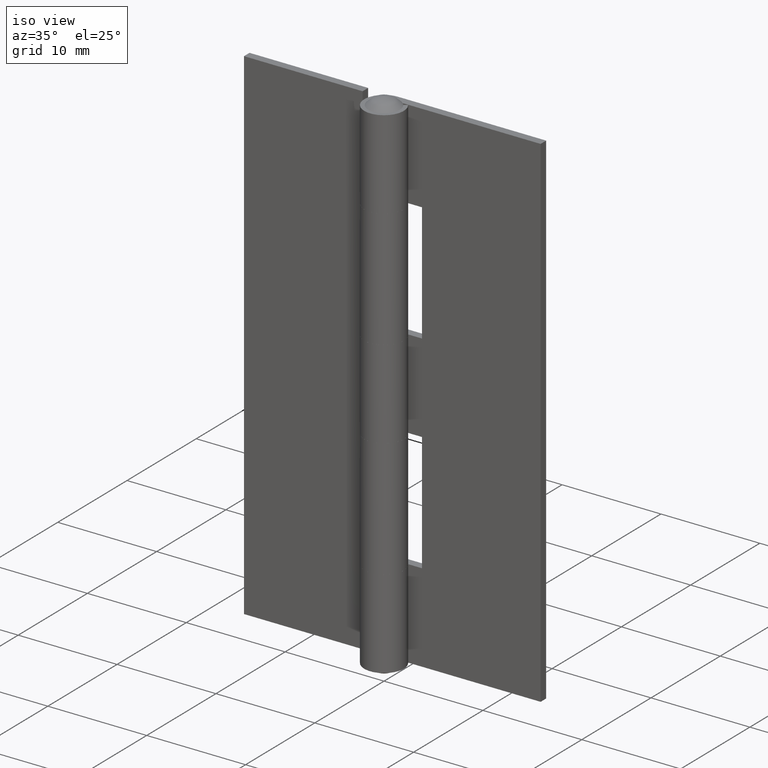
[diagram: clean part render]
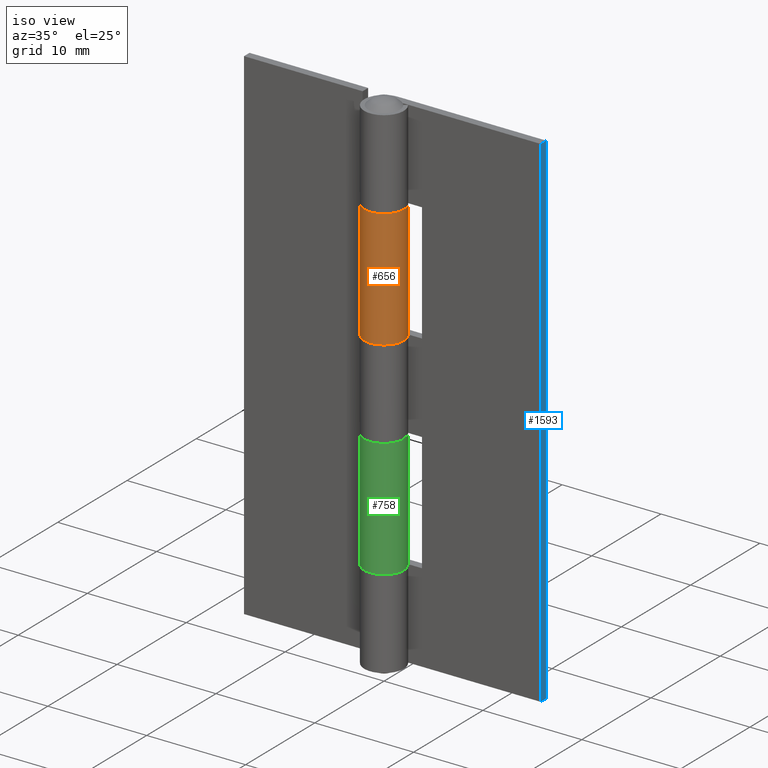
[diagram: same view with three faces highlighted in distinct colors, each labeled with its STEP entity id]
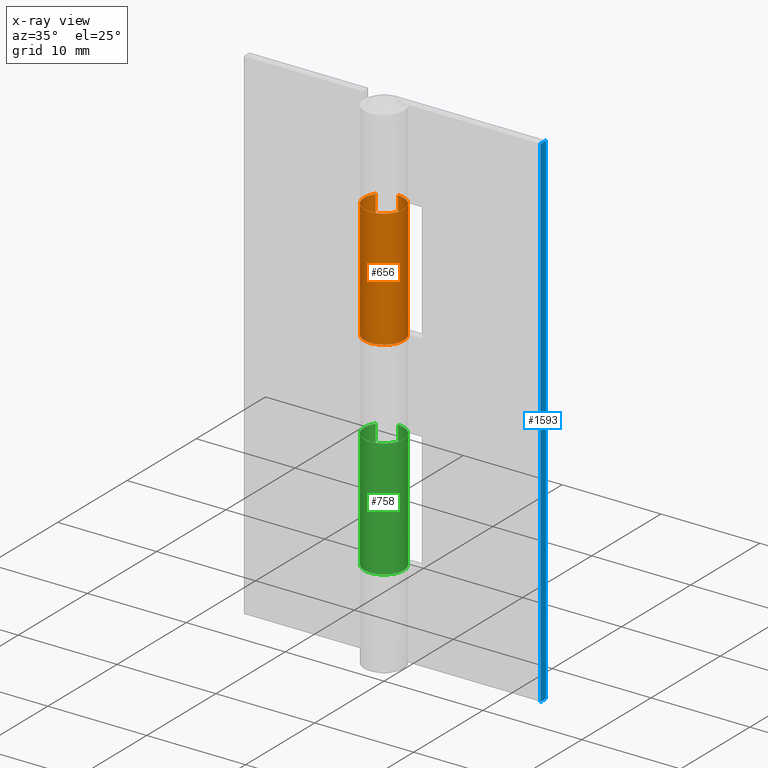
[diagram: x-ray of the same camera — body ghosted, the three highlighted faces saturated]
A machine part, iso view with three faces highlighted in distinct colors.
The next image is the same camera in x-ray (body ghosted, the three faces saturated) — at least one of them is partly hidden behind the body in this view.
Their STEP definitions:

[orange] entity #656 — the highlighted face is a freeform B-spline surface patch.
#171=CARTESIAN_POINT('',(1.431147E-014,2.0,30.0));
#172=VERTEX_POINT('',#171);
#173=CARTESIAN_POINT('',(-1.636306817195345,1.150000000000000,30.0));
#174=VERTEX_POINT('',#173);
#175=CARTESIAN_POINT('',(1.431147E-014,2.0,30.0));
#176=CARTESIAN_POINT('',(0.166407415358827,2.000050079355388,30.000000000000021));
#177=CARTESIAN_POINT('',(0.429851216556890,1.966913001583716,29.999999999999972));
#178=CARTESIAN_POINT('',(0.785910731050889,1.847956880970741,30.000000000000050));
#179=CARTESIAN_POINT('',(1.131834049701320,1.668626990041065,29.999999999999961));
#180=CARTESIAN_POINT('',(1.496757528747735,1.363287093008922,30.000000000000028));
#181=CARTESIAN_POINT('',(1.798553053980026,0.925414399863152,29.999999999999979));
#182=CARTESIAN_POINT('',(1.982173891424066,0.412231130809324,30.000000000000021));
#183=CARTESIAN_POINT('',(2.016998049013773,-0.062981384088155,30.000000000000060));
#184=CARTESIAN_POINT('',(1.952190252278577,-0.475393508097734,29.999999999999780));
#185=CARTESIAN_POINT('',(1.833291464195715,-0.831805031842955,29.999999999999961));
#186=CARTESIAN_POINT('',(1.646138040619473,-1.158921798141773,30.000000000000188));
#187=CARTESIAN_POINT('',(1.389991396884875,-1.452533978939808,29.999999999999911));
#188=CARTESIAN_POINT('',(1.075105907072353,-1.705487834973646,29.999999999999730));
#189=CARTESIAN_POINT('',(0.636478216757960,-1.921942713740374,29.999999999999829));
#190=CARTESIAN_POINT('',(0.085742863000897,-2.026682686162110,30.000000000000540));
#191=CARTESIAN_POINT('',(-0.443979542244820,-1.971719284751333,29.999999999999069));
#192=CARTESIAN_POINT('',(-0.862633929069587,-1.817424476725190,30.000000000001251));
#193=CARTESIAN_POINT('',(-1.220664866619967,-1.602758880038607,29.999999999998479));
#194=CARTESIAN_POINT('',(-1.548472519762556,-1.298563796943568,30.000000000000540));
#195=CARTESIAN_POINT('',(-1.806073852829822,-0.899293160364123,29.999999999999879));
#196=CARTESIAN_POINT('',(-1.947209931733886,-0.505547267733501,30.0));
#197=CARTESIAN_POINT('',(-2.003777218698928,-0.148191587166170,29.999999999999911));
#198=CARTESIAN_POINT('',(-2.000275504016949,0.227518922927573,30.000000000000490));
#199=CARTESIAN_POINT('',(-1.905618359419077,0.678304117208774,29.999999999998838));
#200=CARTESIAN_POINT('',(-1.748007598319449,0.991210971408382,30.000000000000320));
#201=CARTESIAN_POINT('',(-1.636306817195345,1.150000000000000,30.0));
#202=B_SPLINE_CURVE_WITH_KNOTS('',3,(#175,#176,#177,#178,#179,#180,#181,#182,#183,#184,#185,#186,#187,#188,#189,#190,#191,#192,#193,#194,#195,#196,#197,#198,#199,#200,#201),.UNSPECIFIED.,.F.,.U.,(4,1,1,1,1,1,1,1,1,1,1,1,1,1,1,1,1,1,1,1,1,1,1,1,4),(0.000000201474188,0.499212689338291,0.790429006822603,1.123256379161166,1.664097032060798,2.204944293009575,2.704141026150888,3.286565640552339,3.619397250422500,3.952214970633659,4.409852887397958,4.742679100298130,5.117104416916960,5.616279948030615,6.198724721853265,6.781170240478960,7.197206596826588,7.530033253511289,8.029227655604821,8.528441217914102,8.944476352518075,9.277303727273678,9.610128428154880,10.067767841609429,10.650178224110160),.UNSPECIFIED.);
#203=EDGE_CURVE('',#172,#174,#202,.T.);
#386=CARTESIAN_POINT('',(-1.636306817195345,1.150000000000000,42.0));
#387=VERTEX_POINT('',#386);
#388=CARTESIAN_POINT('',(1.421085E-014,2.0,42.0));
#389=VERTEX_POINT('',#388);
#390=CARTESIAN_POINT('',(-1.636306817195345,1.150000000000000,42.0));
#391=CARTESIAN_POINT('',(-1.748018682310231,0.991210865877407,42.000000000000263));
#392=CARTESIAN_POINT('',(-1.880371840426603,0.728366835532338,41.999999999999609));
#393=CARTESIAN_POINT('',(-1.982996454811505,0.324062319857837,42.000000000000277));
#394=CARTESIAN_POINT('',(-2.008148876336563,0.018679148481105,41.999999999999858));
#395=CARTESIAN_POINT('',(-1.983547463671409,-0.313881204574845,42.000000000000007));
#396=CARTESIAN_POINT('',(-1.891603044002020,-0.707217001335716,42.000000000000007));
#397=CARTESIAN_POINT('',(-1.707904580457728,-1.069735533666204,42.0));
#398=CARTESIAN_POINT('',(-1.464108883074861,-1.372913327825451,42.0));
#399=CARTESIAN_POINT('',(-1.239751626289915,-1.581173363288416,41.999999999999993));
#400=CARTESIAN_POINT('',(-0.914225857587519,-1.795300835210603,42.000000000000007));
#401=CARTESIAN_POINT('',(-0.549926475284961,-1.938164267052962,42.000000000000021));
#402=CARTESIAN_POINT('',(-0.096987336361621,-2.013930339422328,42.000000000000007));
#403=CARTESIAN_POINT('',(0.350202936965233,-1.990364516745622,42.000000000000028));
#404=CARTESIAN_POINT('',(0.829911960461513,-1.840746750717589,41.999999999999972));
#405=CARTESIAN_POINT('',(1.225110946519733,-1.603041699137129,42.000000000000043));
#406=CARTESIAN_POINT('',(1.525280143150839,-1.311763673424854,41.999999999999922));
#407=CARTESIAN_POINT('',(1.733508576525659,-1.015886066766081,41.999999999999993));
#408=CARTESIAN_POINT('',(1.901932031299471,-0.664519599077613,42.000000000000590));
#409=CARTESIAN_POINT('',(2.001121178425797,-0.257157191773396,41.999999999998487));
#410=CARTESIAN_POINT('',(2.005890777932029,0.216859500142895,42.000000000002139));
#411=CARTESIAN_POINT('',(1.902807663356550,0.680702721343006,41.999999999998657));
#412=CARTESIAN_POINT('',(1.700892736017760,1.079726855818193,42.000000000000483));
#413=CARTESIAN_POINT('',(1.422157853996408,1.427007873524320,41.999999999999773));
#414=CARTESIAN_POINT('',(1.065441576196221,1.719351499745933,42.000000000000647));
#415=CARTESIAN_POINT('',(0.568504551835757,1.945048736086631,41.999999999997527));
#416=CARTESIAN_POINT('',(0.194143221032307,2.000085496742359,42.000000000005940));
#417=CARTESIAN_POINT('',(1.421085E-014,2.0,42.0));
#418=B_SPLINE_CURVE_WITH_KNOTS('',3,(#390,#391,#392,#393,#394,#395,#396,#397,#398,#399,#400,#401,#402,#403,#404,#405,#406,#407,#408,#409,#410,#411,#412,#413,#414,#415,#416,#417),.UNSPECIFIED.,.F.,.U.,(4,1,1,1,1,1,1,1,1,1,1,1,1,1,1,1,1,1,1,1,1,1,1,1,1,4),(0.000000201473163,0.582416088580835,0.873635155170991,1.248067233240366,1.497682879291890,1.872116587358658,2.454557791254880,2.704141026150337,3.036944900931299,3.369773954617563,3.869009265802554,4.201835316415449,4.742679100297766,5.200304102772907,5.699484902424469,6.115517430285908,6.448347043526924,6.781170240478712,7.280413625229476,7.696444078620313,8.195620997142635,8.694854542301505,9.027683879653475,9.526921123900054,10.067767841609401,10.650178224110171),.UNSPECIFIED.);
#419=EDGE_CURVE('',#387,#389,#418,.T.);
#614=CARTESIAN_POINT('',(-1.636306817195345,1.150000000000000,42.0));
#615=CARTESIAN_POINT('',(-1.636306817195345,1.150000000000000,30.0));
#616=QUASI_UNIFORM_CURVE('',1,(#614,#615),.UNSPECIFIED.,.F.,.U.);
#617=EDGE_CURVE('',#387,#174,#616,.T.);
#624=CARTESIAN_POINT('',(-1.586706680582456,1.217522858017441,42.299999999999997));
#625=CARTESIAN_POINT('',(-1.586706680582456,1.217522858017441,29.692499999999999));
#626=CARTESIAN_POINT('',(-3.145064874705680,-0.813369080538948,42.300000000000004));
#627=CARTESIAN_POINT('',(-3.145064874705680,-0.813369080538948,29.692499999999999));
#628=CARTESIAN_POINT('',(-0.797498137850478,-1.834120148770247,42.299999999999997));
#629=CARTESIAN_POINT('',(-0.797498137850478,-1.834120148770247,29.692499999999999));
#630=CARTESIAN_POINT('',(1.550068599004725,-2.854871217001547,42.300000000000004));
#631=CARTESIAN_POINT('',(1.550068599004725,-2.854871217001547,29.692499999999999));
#632=CARTESIAN_POINT('',(1.972571203074476,-0.330095211721356,42.299999999999997));
#633=CARTESIAN_POINT('',(1.972571203074476,-0.330095211721356,29.692499999999999));
#634=CARTESIAN_POINT('',(2.395073807144229,2.194680793558835,42.300000000000004));
#635=CARTESIAN_POINT('',(2.395073807144229,2.194680793558835,29.692499999999999));
#636=CARTESIAN_POINT('',(-0.156918191455675,1.993834667466255,42.299999999999997));
#637=CARTESIAN_POINT('',(-0.156918191455675,1.993834667466255,29.692499999999999));
#645=(BOUNDED_SURFACE()B_SPLINE_SURFACE(1,2,((#624,#626,#628,#630,#632,#634,#636),(#625,#627,#629,#631,#633,#635,#637)),.UNSPECIFIED.,.F.,.F.,.U.)B_SPLINE_SURFACE_WITH_KNOTS((2,2),(3,2,2,3),(0.0,12.607500000000011),(0.0,3.901860708526890,7.803721417053780,11.705582125580669),.UNSPECIFIED.)GEOMETRIC_REPRESENTATION_ITEM()RATIONAL_B_SPLINE_SURFACE(((1.0,0.615661475325658,1.0,0.615661475325658,1.0,0.615661475325658,1.0),(1.0,0.615661475325658,1.0,0.615661475325658,1.0,0.615661475325658,1.0)))REPRESENTATION_ITEM('')SURFACE());
#646=ORIENTED_EDGE('',*,*,#203,.F.);
#647=CARTESIAN_POINT('',(1.421085E-014,2.0,42.0));
#648=CARTESIAN_POINT('',(1.431147E-014,2.0,30.0));
#649=QUASI_UNIFORM_CURVE('',1,(#647,#648),.UNSPECIFIED.,.F.,.U.);
#650=EDGE_CURVE('',#389,#172,#649,.T.);
#651=ORIENTED_EDGE('',*,*,#650,.F.);
#652=ORIENTED_EDGE('',*,*,#419,.F.);
#653=ORIENTED_EDGE('',*,*,#617,.T.);
#654=EDGE_LOOP('',(#646,#651,#652,#653));
#655=FACE_OUTER_BOUND('',#654,.T.);
#656=ADVANCED_FACE('',(#655),#645,.T.);

[blue] entity #1593 — the highlighted face is a freeform B-spline surface patch.
#1135=CARTESIAN_POINT('',(15.0,1.200001000000014,0.0));
#1136=VERTEX_POINT('',#1135);
#1142=CARTESIAN_POINT('',(15.0,1.200001000000014,51.0));
#1143=VERTEX_POINT('',#1142);
#1144=CARTESIAN_POINT('',(15.0,1.200001000000014,51.0));
#1145=CARTESIAN_POINT('',(15.0,1.200001000000014,0.0));
#1146=QUASI_UNIFORM_CURVE('',1,(#1144,#1145),.UNSPECIFIED.,.F.,.U.);
#1147=EDGE_CURVE('',#1143,#1136,#1146,.T.);
#1495=CARTESIAN_POINT('',(15.0,2.0,0.0));
#1496=VERTEX_POINT('',#1495);
#1502=CARTESIAN_POINT('',(15.0,2.0,0.0));
#1503=CARTESIAN_POINT('',(15.0,1.200001000000014,0.0));
#1504=QUASI_UNIFORM_CURVE('',1,(#1502,#1503),.UNSPECIFIED.,.F.,.U.);
#1505=EDGE_CURVE('',#1496,#1136,#1504,.T.);
#1563=CARTESIAN_POINT('',(15.0,2.0,51.0));
#1564=VERTEX_POINT('',#1563);
#1565=CARTESIAN_POINT('',(15.0,2.0,51.0));
#1566=CARTESIAN_POINT('',(15.0,1.200001000000014,51.0));
#1567=QUASI_UNIFORM_CURVE('',1,(#1565,#1566),.UNSPECIFIED.,.F.,.U.);
#1568=EDGE_CURVE('',#1564,#1143,#1567,.T.);
#1578=CARTESIAN_POINT('',(15.0,1.160041051500568,53.547449901152113));
#1579=CARTESIAN_POINT('',(15.0,1.160041051500568,-2.547451269078700));
#1580=CARTESIAN_POINT('',(15.0,2.039959969957091,53.547449901152113));
#1581=CARTESIAN_POINT('',(15.0,2.039959969957091,-2.547451269078700));
#1582=B_SPLINE_SURFACE_WITH_KNOTS('',1,1,((#1578,#1580),(#1579,#1581)),.UNSPECIFIED.,.F.,.F.,.U.,(2,2),(2,2),(0.0,56.094901170230813),(0.041708334948495,0.958291687403247),.UNSPECIFIED.);
#1583=ORIENTED_EDGE('',*,*,#1505,.F.);
#1584=CARTESIAN_POINT('',(15.0,2.0,51.0));
#1585=CARTESIAN_POINT('',(15.0,2.0,0.0));
#1586=QUASI_UNIFORM_CURVE('',1,(#1584,#1585),.UNSPECIFIED.,.F.,.U.);
#1587=EDGE_CURVE('',#1564,#1496,#1586,.T.);
#1588=ORIENTED_EDGE('',*,*,#1587,.F.);
#1589=ORIENTED_EDGE('',*,*,#1568,.T.);
#1590=ORIENTED_EDGE('',*,*,#1147,.T.);
#1591=EDGE_LOOP('',(#1583,#1588,#1589,#1590));
#1592=FACE_OUTER_BOUND('',#1591,.T.);
#1593=ADVANCED_FACE('',(#1592),#1582,.T.);

[green] entity #758 — the highlighted face is a freeform B-spline surface patch.
#46=CARTESIAN_POINT('',(1.387779E-014,2.0,8.999999999999890));
#47=VERTEX_POINT('',#46);
#48=CARTESIAN_POINT('',(-1.636306817195345,1.150000000000000,8.999999999999901));
#49=VERTEX_POINT('',#48);
#50=CARTESIAN_POINT('',(1.387779E-014,2.0,8.999999999999890));
#51=CARTESIAN_POINT('',(0.235772724854465,2.000195115958390,8.999999999999904));
#52=CARTESIAN_POINT('',(0.554578149266585,1.942946509357592,8.999999999999906));
#53=CARTESIAN_POINT('',(0.961267178108167,1.763225772590603,8.999999999999899));
#54=CARTESIAN_POINT('',(1.230623172289683,1.589818114531876,8.999999999999917));
#55=CARTESIAN_POINT('',(1.495643168199307,1.343506329169947,8.999999999999886));
#56=CARTESIAN_POINT('',(1.705029450003856,1.065285151578881,8.999999999999908));
#57=CARTESIAN_POINT('',(1.874635398190296,0.730037438271740,8.999999999999901));
#58=CARTESIAN_POINT('',(1.967463569805706,0.408576458407022,8.999999999999885));
#59=CARTESIAN_POINT('',(2.008825990087868,0.049708883457888,8.999999999999957));
#60=CARTESIAN_POINT('',(1.987287642475482,-0.368015428909945,8.999999999999751));
#61=CARTESIAN_POINT('',(1.833458075459122,-0.863239018842007,9.000000000000036));
#62=CARTESIAN_POINT('',(1.556419749854200,-1.284045199584730,8.999999999999696));
#63=CARTESIAN_POINT('',(1.253483525654014,-1.571841990699703,9.000000000000243));
#64=CARTESIAN_POINT('',(0.916647924318647,-1.794066582754029,8.999999999999368));
#65=CARTESIAN_POINT('',(0.552563977028909,-1.937405367156486,9.000000000000128));
#66=CARTESIAN_POINT('',(0.113468172059803,-2.011473687940171,8.999999999999828));
#67=CARTESIAN_POINT('',(-0.305451644756023,-1.994332131703413,8.999999999999988));
#68=CARTESIAN_POINT('',(-0.762367432696390,-1.867988911671134,8.999999999999931));
#69=CARTESIAN_POINT('',(-1.204273209718094,-1.627481142991952,8.999999999999719));
#70=CARTESIAN_POINT('',(-1.566843172823254,-1.276645695289314,8.999999999999973));
#71=CARTESIAN_POINT('',(-1.786187706483556,-0.920510056393710,8.999999999999885));
#72=CARTESIAN_POINT('',(-1.922160128270715,-0.585817469581292,8.999999999999915));
#73=CARTESIAN_POINT('',(-2.001075460930956,-0.232004456811812,8.999999999999787));
#74=CARTESIAN_POINT('',(-2.005683645044045,0.172308836846956,9.000000000000165));
#75=CARTESIAN_POINT('',(-1.915459891986225,0.651380409618540,8.999999999999490));
#76=CARTESIAN_POINT('',(-1.764019644233239,0.968545167682528,9.000000000000265));
#77=CARTESIAN_POINT('',(-1.636306817195345,1.150000000000000,8.999999999999901));
#78=B_SPLINE_CURVE_WITH_KNOTS('',3,(#50,#51,#52,#53,#54,#55,#56,#57,#58,#59,#60,#61,#62,#63,#64,#65,#66,#67,#68,#69,#70,#71,#72,#73,#74,#75,#76,#77),.UNSPECIFIED.,.F.,.U.,(4,1,1,1,1,1,1,1,1,1,1,1,1,1,1,1,1,1,1,1,1,1,1,1,1,4),(0.000000201474213,0.707223280286163,0.956841827539417,1.331273667577992,1.664097032060816,2.038531206500936,2.371354828227567,2.787336594350122,3.036944900931814,3.452982707128797,4.035421358272266,4.576266128987075,4.950695335371880,5.283497120580130,5.782690773657766,6.115517430286193,6.614759586974556,7.030791814883877,7.530033253511289,8.112421365872057,8.528441217914102,8.778061570655369,9.194097927022021,9.610128428154880,9.984561182065734,10.650178224110160),.UNSPECIFIED.);
#79=EDGE_CURVE('',#47,#49,#78,.T.);
#297=CARTESIAN_POINT('',(-1.636306817195345,1.150000000000000,21.0));
#298=VERTEX_POINT('',#297);
#299=CARTESIAN_POINT('',(1.431147E-014,2.0,21.0));
#300=VERTEX_POINT('',#299);
#301=CARTESIAN_POINT('',(-1.636306817195345,1.150000000000000,21.0));
#302=CARTESIAN_POINT('',(-1.764022391110690,0.968545392066031,21.000000000000089));
#303=CARTESIAN_POINT('',(-1.915453610786671,0.651378923409736,20.999999999999918));
#304=CARTESIAN_POINT('',(-2.008272876366514,0.158620447959755,21.000000000000039));
#305=CARTESIAN_POINT('',(-1.999444685018736,-0.246075819918336,20.999999999999979));
#306=CARTESIAN_POINT('',(-1.910575626889437,-0.625814267958550,21.0));
#307=CARTESIAN_POINT('',(-1.761978281427420,-0.970896793626547,21.000000000000011));
#308=CARTESIAN_POINT('',(-1.543552254712406,-1.294441185721114,20.999999999999989));
#309=CARTESIAN_POINT('',(-1.263004548582533,-1.565891304614216,21.0));
#310=CARTESIAN_POINT('',(-0.937469537450147,-1.779983953383475,20.999999999999989));
#311=CARTESIAN_POINT('',(-0.564205706066236,-1.935421621961499,21.000000000000011));
#312=CARTESIAN_POINT('',(-0.083209742157613,-2.021069289309997,21.0));
#313=CARTESIAN_POINT('',(0.419540192259537,-1.978809708720611,21.000000000000011));
#314=CARTESIAN_POINT('',(0.932040685452684,-1.795230904732065,21.0));
#315=CARTESIAN_POINT('',(1.358869438218265,-1.500822467341874,21.000000000000050));
#316=CARTESIAN_POINT('',(1.699549974943859,-1.093401522565087,20.999999999999861));
#317=CARTESIAN_POINT('',(1.892797590224171,-0.690078450412486,21.000000000000469));
#318=CARTESIAN_POINT('',(1.984955116974204,-0.311495208188337,20.999999999999201));
#319=CARTESIAN_POINT('',(2.013189523327736,0.077102703675226,21.000000000001119));
#320=CARTESIAN_POINT('',(1.952796124673902,0.520216615248158,20.999999999999591));
#321=CARTESIAN_POINT('',(1.784748402533277,0.934640742665196,21.000000000000099));
#322=CARTESIAN_POINT('',(1.535830549021631,1.303877788222853,21.000000000000071));
#323=CARTESIAN_POINT('',(1.244778733675261,1.585918566033428,20.999999999999769));
#324=CARTESIAN_POINT('',(0.900649641317936,1.797431045550786,21.000000000000341));
#325=CARTESIAN_POINT('',(0.499164586754285,1.955207059429411,20.999999999999211));
#326=CARTESIAN_POINT('',(0.194144878221340,2.000092256913730,21.000000000002650));
#327=CARTESIAN_POINT('',(1.431147E-014,2.0,21.0));
#328=B_SPLINE_CURVE_WITH_KNOTS('',3,(#301,#302,#303,#304,#305,#306,#307,#308,#309,#310,#311,#312,#313,#314,#315,#316,#317,#318,#319,#320,#321,#322,#323,#324,#325,#326,#327),.UNSPECIFIED.,.F.,.U.,(4,1,1,1,1,1,1,1,1,1,1,1,1,1,1,1,1,1,1,1,1,1,1,1,4),(0.000000201473162,0.665619977118187,1.040048970757805,1.497682879291888,1.872116587358656,2.204944293008946,2.620951745357285,3.036944900931297,3.369773954617561,3.785804395890344,4.243438889399301,4.825885678587870,5.283497120579786,5.865897077588183,6.365139739241411,6.864376983503358,7.197206596826369,7.530033253511095,8.029227655604645,8.528441217913970,8.861268862246188,9.360508580647448,9.734939717551150,10.067767841609401,10.650178224110171),.UNSPECIFIED.);
#329=EDGE_CURVE('',#298,#300,#328,.T.);
#672=CARTESIAN_POINT('',(1.431147E-014,2.0,21.0));
#673=CARTESIAN_POINT('',(1.387779E-014,2.0,8.999999999999890));
#674=QUASI_UNIFORM_CURVE('',1,(#672,#673),.UNSPECIFIED.,.F.,.U.);
#675=EDGE_CURVE('',#300,#47,#674,.T.);
#720=CARTESIAN_POINT('',(-1.636306817195345,1.150000000000000,21.0));
#721=CARTESIAN_POINT('',(-1.636306817195345,1.150000000000000,8.999999999999901));
#722=QUASI_UNIFORM_CURVE('',1,(#720,#721),.UNSPECIFIED.,.F.,.U.);
#723=EDGE_CURVE('',#298,#49,#722,.T.);
#730=CARTESIAN_POINT('',(-1.586706680582456,1.217522858017441,21.300000000000011));
#731=CARTESIAN_POINT('',(-1.586706680582456,1.217522858017441,8.692499999999887));
#732=CARTESIAN_POINT('',(-3.145064874705680,-0.813369080538948,21.300000000000011));
#733=CARTESIAN_POINT('',(-3.145064874705680,-0.813369080538948,8.692499999999887));
#734=CARTESIAN_POINT('',(-0.797498137850478,-1.834120148770247,21.300000000000011));
#735=CARTESIAN_POINT('',(-0.797498137850478,-1.834120148770247,8.692499999999887));
#736=CARTESIAN_POINT('',(1.550068599004725,-2.854871217001547,21.300000000000011));
#737=CARTESIAN_POINT('',(1.550068599004725,-2.854871217001547,8.692499999999887));
#738=CARTESIAN_POINT('',(1.972571203074476,-0.330095211721355,21.300000000000011));
#739=CARTESIAN_POINT('',(1.972571203074476,-0.330095211721355,8.692499999999887));
#740=CARTESIAN_POINT('',(2.395073807144227,2.194680793558837,21.300000000000011));
#741=CARTESIAN_POINT('',(2.395073807144227,2.194680793558837,8.692499999999887));
#742=CARTESIAN_POINT('',(-0.156918191455675,1.993834667466255,21.300000000000011));
#743=CARTESIAN_POINT('',(-0.156918191455675,1.993834667466255,8.692499999999887));
#751=(BOUNDED_SURFACE()B_SPLINE_SURFACE(1,2,((#730,#732,#734,#736,#738,#740,#742),(#731,#733,#735,#737,#739,#741,#743)),.UNSPECIFIED.,.F.,.F.,.U.)B_SPLINE_SURFACE_WITH_KNOTS((2,2),(3,2,2,3),(0.0,12.607500000000121),(0.0,3.901860708526890,7.803721417053780,11.705582125580669),.UNSPECIFIED.)GEOMETRIC_REPRESENTATION_ITEM()RATIONAL_B_SPLINE_SURFACE(((1.0,0.615661475325658,1.0,0.615661475325658,1.0,0.615661475325658,1.0),(1.0,0.615661475325658,1.0,0.615661475325658,1.0,0.615661475325658,1.0)))REPRESENTATION_ITEM('')SURFACE());
#752=ORIENTED_EDGE('',*,*,#79,.F.);
#753=ORIENTED_EDGE('',*,*,#675,.F.);
#754=ORIENTED_EDGE('',*,*,#329,.F.);
#755=ORIENTED_EDGE('',*,*,#723,.T.);
#756=EDGE_LOOP('',(#752,#753,#754,#755));
#757=FACE_OUTER_BOUND('',#756,.T.);
#758=ADVANCED_FACE('',(#757),#751,.T.);